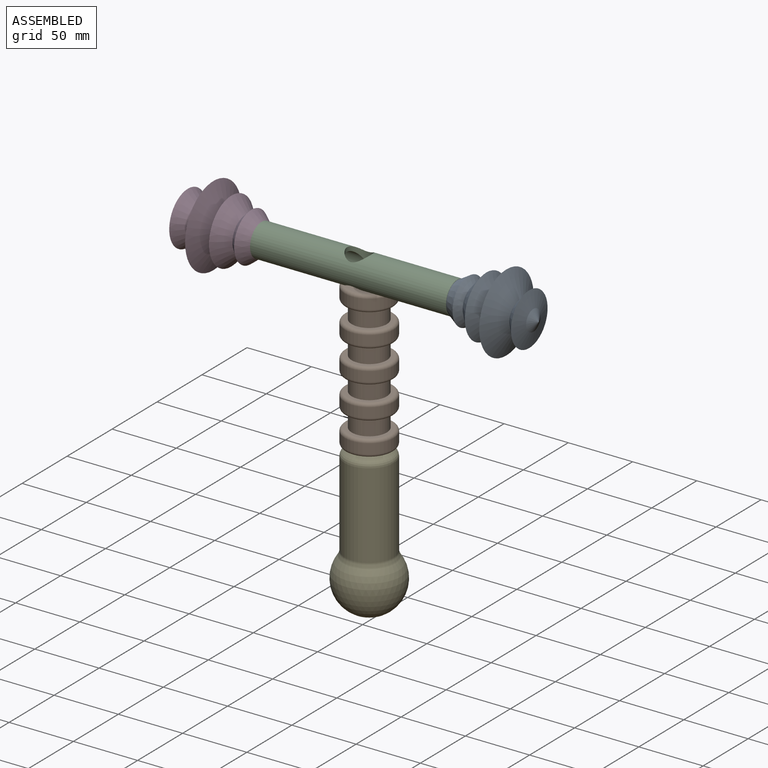
[diagram: assembled view]
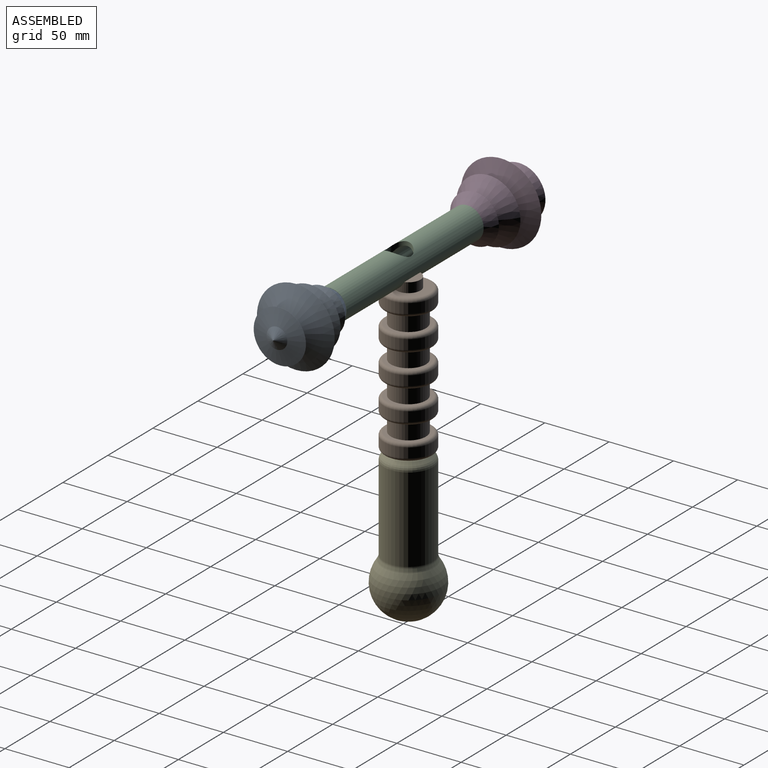
[diagram: assembled view, second angle]
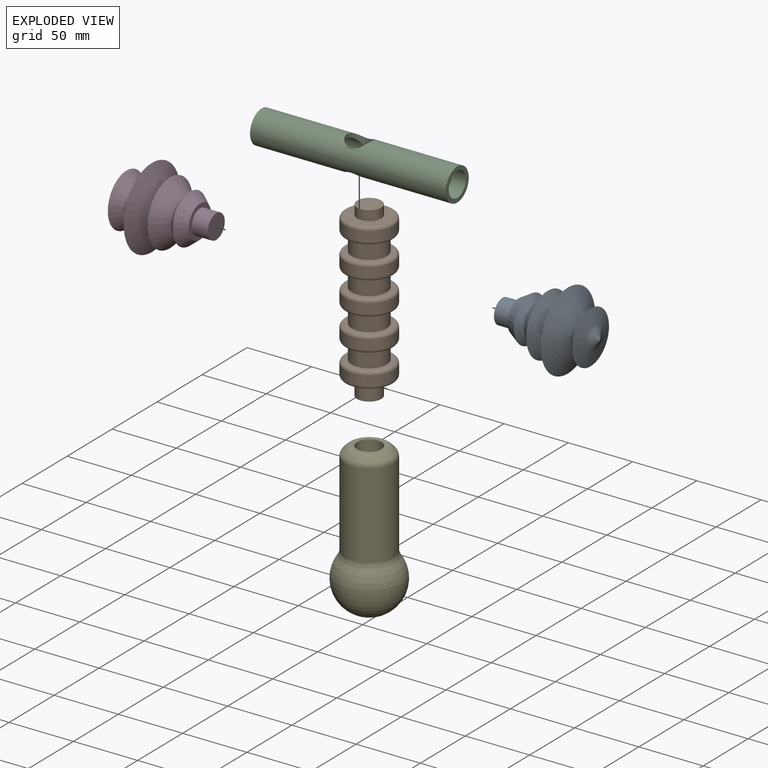
[diagram: exploded view]
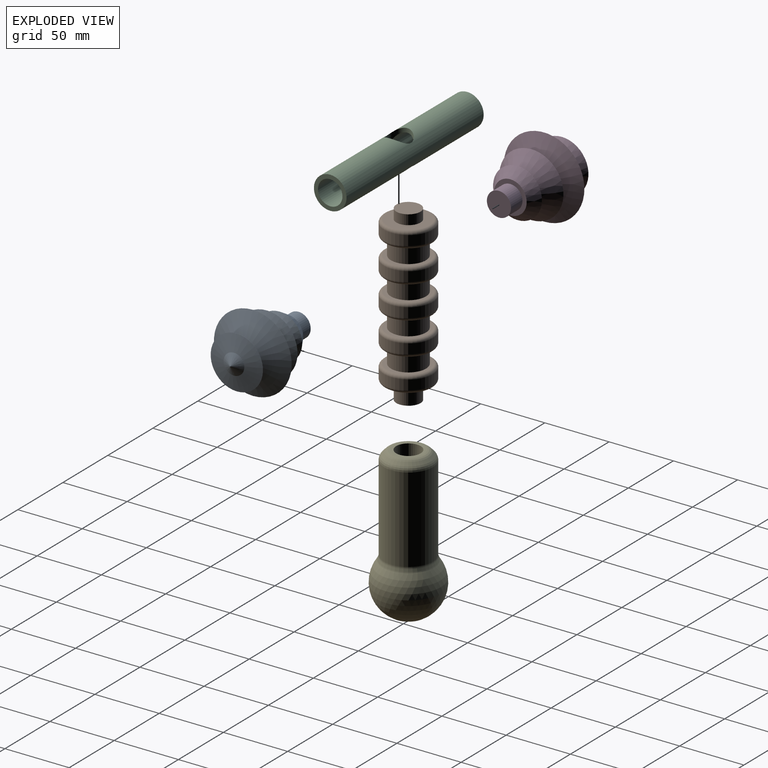
[diagram: exploded view, second angle]
ASSEMBLY  parts=5 mates=3
PART A: 12 faces, bbox 76.2x60.6x60.6 mm
  f0: plane 25.01x25.01mm, normal (-1,0,0), area 213.7mm2, adj f1,f10
  f1: cone r=12.5mm half-angle=31deg, axis (1,0,0), area 965.2mm2, adj f0,f2
  f2: cone r=17.74mm half-angle=54.4deg, axis (-1,0,0), area 644.1mm2, adj f1,f3
  f3: cone r=12.16mm half-angle=49.8deg, axis (1,0,0), area 1721.7mm2, adj f2,f4
  f4: cone r=23.8mm half-angle=63deg, axis (-1,0,0), area 1595.6mm2, adj f3,f5
  f5: cone r=10.67mm half-angle=65.2deg, axis (1,0,0), area 2777.5mm2, adj f4,f6
  f6: cone r=30.28mm half-angle=65.6deg, axis (-1,0,0), area 2823.1mm2, adj f5,f7
  f7: cone r=9.93mm half-angle=50.8deg, axis (1,0,0), area 1280.7mm2, adj f6,f8
  f8: cone r=20.36mm half-angle=75.5deg, axis (-1,0,0), area 1133.8mm2, adj f7,f9
  f9: cone r=0mm half-angle=61.8deg, axis (-1,0,0), area 231.5mm2, adj f8
  f10: cylinder r=9.4mm len=18.8mm, axis (1,0,0), area 749.9mm2, adj f0,f11
  f11: plane 18.8x18.8mm, normal (-1,0,0), area 277.5mm2, adj f10
PART B: 33 faces, bbox 41.2x41.2x134.6 mm
  f0: plane 33.02x33.02mm, normal (0,0,1), area 578.9mm2, adj f19,f29
  f1: cylinder r=19.05mm len=38.1mm, axis (0,0,-1), area 912.1mm2, adj f19,f20
  f2: plane 33.02x33.02mm, normal (0,0,-1), area 270.3mm2, adj f3,f20
  f3: cylinder r=13.66mm len=27.32mm, axis (0,0,-1), area 1089.8mm2, adj f2,f4
  f4: plane 33.02x33.02mm, normal (0,0,1), area 270.3mm2, adj f3,f21
  f5: cylinder r=19.05mm len=38.1mm, axis (0,0,-1), area 912.1mm2, adj f21,f22
  f6: plane 33.02x33.02mm, normal (0,0,-1), area 270.3mm2, adj f7,f22
  f7: cylinder r=13.66mm len=27.32mm, axis (0,0,-1), area 1089.8mm2, adj f6,f8
  f8: plane 33.02x33.02mm, normal (0,0,1), area 270.3mm2, adj f7,f23
  f9: cylinder r=19.05mm len=38.1mm, axis (0,0,-1), area 912.1mm2, adj f23,f24
  f10: plane 33.02x33.02mm, normal (0,0,-1), area 270.3mm2, adj f11,f24
  f11: cylinder r=13.66mm len=27.32mm, axis (0,0,-1), area 1089.8mm2, adj f10,f12
  f12: plane 33.02x33.02mm, normal (0,0,1), area 270.3mm2, adj f11,f25
  f13: cylinder r=19.05mm len=38.1mm, axis (0,0,-1), area 912.1mm2, adj f25,f26
  f14: plane 33.02x33.02mm, normal (0,0,-1), area 270.3mm2, adj f15,f26
  f15: cylinder r=13.66mm len=27.32mm, axis (0,0,-1), area 1089.8mm2, adj f14,f16
  f16: plane 33.02x33.02mm, normal (0,0,1), area 270.3mm2, adj f15,f27
  f17: cylinder r=19.05mm len=38.1mm, axis (0,0,-1), area 912.1mm2, adj f27,f28
  f18: plane 33.02x33.02mm, normal (0,0,-1), area 578.9mm2, adj f28,f31
  f19: torus R=16.51mm, axis (0,0,-1), area 454.4mm2, adj f0,f1
  f20: torus R=16.51mm, axis (0,0,-1), area 454.4mm2, adj f1,f2
  f21: torus R=16.51mm, axis (0,0,-1), area 454.4mm2, adj f4,f5
  f22: torus R=16.51mm, axis (0,0,-1), area 454.4mm2, adj f5,f6
  f23: torus R=16.51mm, axis (0,0,-1), area 454.4mm2, adj f8,f9
  f24: torus R=16.51mm, axis (0,0,-1), area 454.4mm2, adj f9,f10
  f25: torus R=16.51mm, axis (0,0,-1), area 454.4mm2, adj f12,f13
  f26: torus R=16.51mm, axis (0,0,-1), area 454.4mm2, adj f13,f14
  f27: torus R=16.51mm, axis (0,0,-1), area 454.4mm2, adj f16,f17
  f28: torus R=16.51mm, axis (0,0,-1), area 454.4mm2, adj f17,f18
  f29: cylinder r=9.4mm len=18.8mm, axis (0,0,-1), area 450mm2, adj f0,f30
  f30: plane 18.8x18.8mm, normal (0,0,1), area 277.5mm2, adj f29
  f31: cylinder r=9.4mm len=18.8mm, axis (0,0,1), area 749.9mm2, adj f18,f32
  f32: plane 18.8x18.8mm, normal (0,0,-1), area 277.5mm2, adj f31
PART C: 7 faces, bbox 152.4x25.4x25.4 mm
  f0: cylinder r=12.7mm len=152.4mm, axis (-1,0,0), area 11538.2mm2, adj f3,f4,f5,f6
  f1: cylinder r=9.53mm len=76.2mm, axis (-1,0,0), area 4197.5mm2, adj f3,f5,f6
  f2: cylinder r=9.53mm len=76.2mm, axis (-1,0,0), area 4197.5mm2, adj f4,f5,f6
  f3: plane 25.4x25.4mm, normal (1,0,0), area 221.7mm2, adj f0,f1
  f4: plane 25.4x25.4mm, normal (-1,0,0), area 221.7mm2, adj f0,f2
  f5: cylinder r=9.53mm len=19.05mm, axis (0,0,-1), area 274.9mm2, adj f0,f1,f2
  f6: cylinder r=9.53mm len=19.05mm, axis (0,0,-1), area 275mm2, adj f0,f1,f2
PART D: 12 faces, bbox 76.2x62.8x62.8 mm
  f0: plane 25.4x25.4mm, normal (1,0,0), area 229.2mm2, adj f1,f10
  f1: cone r=12.7mm half-angle=38.5deg, axis (-1,0,0), area 1012.4mm2, adj f0,f2
  f2: cone r=19.02mm half-angle=46.2deg, axis (1,0,0), area 712.8mm2, adj f1,f3
  f3: cone r=14.07mm half-angle=45.6deg, axis (-1,0,0), area 1867.8mm2, adj f2,f4
  f4: cone r=24.95mm half-angle=66.7deg, axis (1,0,0), area 1683mm2, adj f3,f5
  f5: cone r=11.42mm half-angle=67.6deg, axis (-1,0,0), area 2902.9mm2, adj f4,f6
  f6: cone r=31.38mm half-angle=63.3deg, axis (1,0,0), area 3005.4mm2, adj f5,f7
  f7: cone r=11.42mm half-angle=43.1deg, axis (-1,0,0), area 1355.2mm2, adj f6,f8
  f8: cone r=20.62mm half-angle=81.6deg, axis (1,0,0), area 1144.4mm2, adj f7,f9
  f9: cone r=0mm half-angle=61.8deg, axis (1,0,0), area 231.5mm2, adj f8
  f10: cylinder r=9.4mm len=18.8mm, axis (-1,0,0), area 749.9mm2, adj f0,f11
  f11: plane 18.8x18.8mm, normal (1,0,0), area 277.5mm2, adj f10
PART E: 11 faces, bbox 50.8x50.8x118.4 mm
  f0: cylinder r=19.05mm len=66.35mm, axis (0,0,1), area 7942mm2, adj f8,f9
  f1: sphere r=25.4mm, area 6436.6mm2, adj f7
  f2: plane 23.73x23.73mm, normal (0,0,1), area 157.3mm2, adj f3,f10
  f3: cylinder r=9.53mm len=19.05mm, axis (0,0,1), area 760.1mm2, adj f2,f4
  f4: plane 19.05x19.05mm, normal (0,0,1), area 285mm2, adj f3
  f5: cone r=19.05mm half-angle=18.8deg, axis (0,0,-1), area 201.1mm2, adj f7,f8
  f6: cone r=13.97mm half-angle=45deg, axis (0,0,-1), area 308.7mm2, adj f9,f10
  f7: torus R=24.66mm, axis (0,0,-1), area 192.9mm2, adj f1,f5
  f8: torus R=24.13mm, axis (0,0,1), area 200.8mm2, adj f0,f5
  f9: torus R=13.97mm, axis (0,0,1), area 464.9mm2, adj f0,f6
  f10: torus R=11.87mm, axis (0,0,1), area 345mm2, adj f2,f6
PLACE A t=(76.2,-103.54,186.05)mm
PLACE B t=(1.63,-94.89,59.05)mm
PLACE C t=(0,-103.54,173.35)mm
PLACE D t=(-76.2,-103.54,186.05)mm
PLACE E t=(1.63,-94.89,58.86)mm
MATE slider D.f10 <-> C.f0  axis (-1,0,0) through (-76.2,-103.54,186.05)mm
MATE slider E.f3 <-> B.f29  axis (0,0,1) through (1.63,-94.89,46.16)mm
MATE slider A.f10 <-> C.f0  axis (1,0,0) through (76.2,-103.54,186.05)mm
